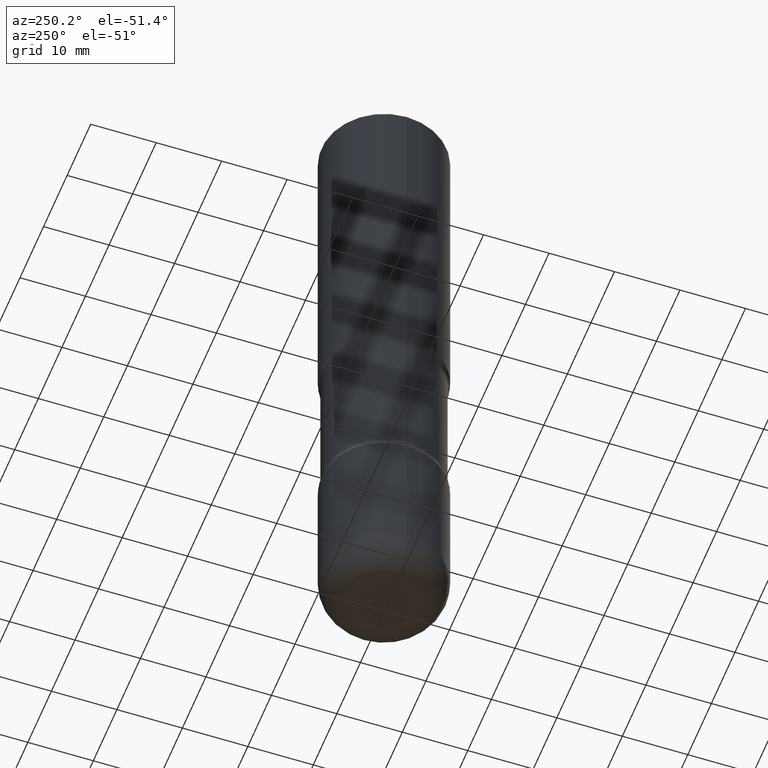
[diagram: clean part render]
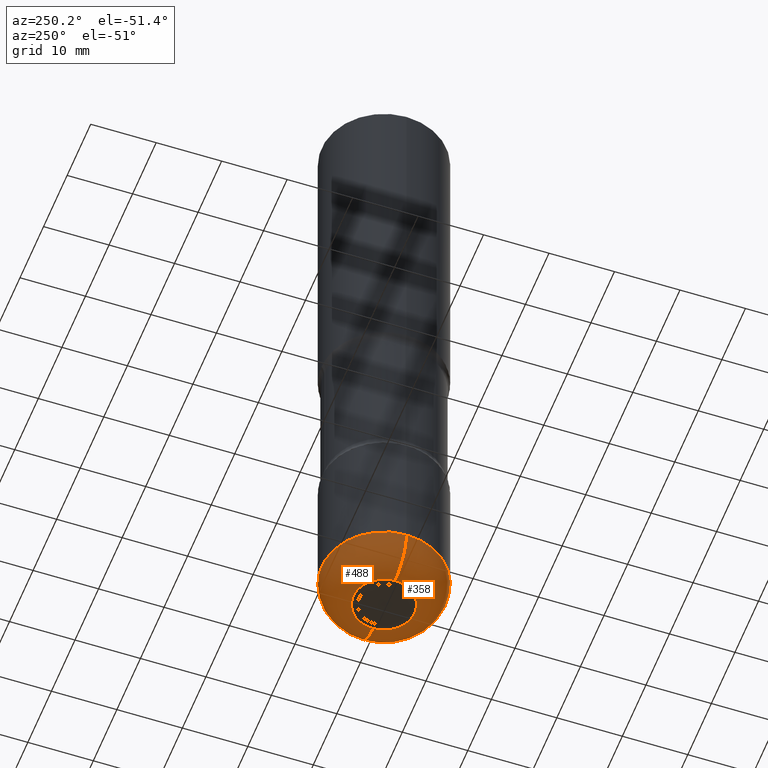
[diagram: same view with one multi-face feature highlighted, each face labeled with its STEP entity id]
A machine part, auxiliary view. The highlighted faces form ONE feature: a constant-radius fillet chain: 2 tangent blend faces with common blend radius 4.826 mm. The faces share edges in the B-rep.
Their STEP definitions:
[1] entity #488 (Torus):
#10 = CARTESIAN_POINT ( 'NONE',  ( -0.1850000000000001088, -1.198803983983620001E-14, -3.810000000000000053 ) ) ;
#19 = CARTESIAN_POINT ( 'NONE',  ( 0.1850000000000001088, -1.459439199636434728E-14, -3.810000000000000053 ) ) ;
#29 = DIRECTION ( 'NONE',  ( -1.000000000000000000, 7.105427357601003436E-15, 0.000000000000000000 ) ) ;
#32 = DIRECTION ( 'NONE',  ( -2.445468806185136597E-29, 3.491481338843145583E-15, 1.000000000000000000 ) ) ;
#59 = ORIENTED_EDGE ( 'NONE', *, *, #162, .T. ) ;
#74 = CARTESIAN_POINT ( 'NONE',  ( -0.1850000000000001366, -1.164471496805420332E-14, -4.000000000000000888 ) ) ;
#92 = DIRECTION ( 'NONE',  ( 1.000000000000000000, -6.982962677686270655E-15, 0.000000000000000000 ) ) ;
#96 = CIRCLE ( 'NONE', #199, 0.1900000000000001132 ) ;
#149 = AXIS2_PLACEMENT_3D ( 'NONE', #211, #470, #714 ) ;
#155 = VERTEX_POINT ( 'NONE', #74 ) ;
#162 = EDGE_CURVE ( 'NONE', #794, #155, #319, .T. ) ;
#194 = DIRECTION ( 'NONE',  ( 7.105427357601001859E-15, 1.000000000000000000, -3.491481338843145583E-15 ) ) ;
#199 = AXIS2_PLACEMENT_3D ( 'NONE', #10, #194, #29 ) ;
#206 = FACE_OUTER_BOUND ( 'NONE', #209, .T. ) ;
#209 = EDGE_LOOP ( 'NONE', ( #59, #276, #213, #767 ) ) ;
#211 = CARTESIAN_POINT ( 'NONE',  ( 9.317236151565370389E-29, -1.330254390099238573E-14, -3.810000000000000053 ) ) ;
#213 = ORIENTED_EDGE ( 'NONE', *, *, #658, .F. ) ;
#217 = AXIS2_PLACEMENT_3D ( 'NONE', #508, #32, #273 ) ;
#223 = DIRECTION ( 'NONE',  ( -2.445468806185136597E-29, 3.491481338843145583E-15, 1.000000000000000000 ) ) ;
#273 = DIRECTION ( 'NONE',  ( 1.000000000000000000, -6.982962677686266711E-15, 0.000000000000000000 ) ) ;
#276 = ORIENTED_EDGE ( 'NONE', *, *, #531, .T. ) ;
#319 = CIRCLE ( 'NONE', #478, 0.1850000000000001366 ) ;
#326 = VERTEX_POINT ( 'NONE', #708 ) ;
#333 = CARTESIAN_POINT ( 'NONE',  ( 9.781875224740547508E-29, -1.396592535537258391E-14, -4.000000000000000888 ) ) ;
#342 = TOROIDAL_SURFACE ( 'NONE', #149, 0.1850000000000001088, 0.1900000000000001688 ) ;
#350 = CIRCLE ( 'NONE', #796, 0.1900000000000001132 ) ;
#366 = VERTEX_POINT ( 'NONE', #549 ) ;
#470 = DIRECTION ( 'NONE',  ( -2.445468806185136597E-29, 3.491481338843145583E-15, 1.000000000000000000 ) ) ;
#478 = AXIS2_PLACEMENT_3D ( 'NONE', #333, #223, #92 ) ;
#488 = ADVANCED_FACE ( 'NONE', ( #206 ), #342, .T. ) ;
#508 = CARTESIAN_POINT ( 'NONE',  ( 9.317236151565370389E-29, -1.330254390099238573E-14, -3.810000000000000053 ) ) ;
#520 = EDGE_CURVE ( 'NONE', #794, #326, #350, .T. ) ;
#531 = EDGE_CURVE ( 'NONE', #155, #366, #96, .T. ) ;
#549 = CARTESIAN_POINT ( 'NONE',  ( -0.3750000000000001110, -1.063800864189200846E-14, -3.810000000000000053 ) ) ;
#647 = DIRECTION ( 'NONE',  ( 1.000000000000000000, -6.982962677686267499E-15, 0.000000000000000000 ) ) ;
#655 = CIRCLE ( 'NONE', #217, 0.3750000000000000555 ) ;
#656 = DIRECTION ( 'NONE',  ( -6.982962677686266711E-15, -1.000000000000000000, 3.491481338843145583E-15 ) ) ;
#658 = EDGE_CURVE ( 'NONE', #326, #366, #655, .T. ) ;
#708 = CARTESIAN_POINT ( 'NONE',  ( 0.3750000000000001110, -1.592115490512473732E-14, -3.810000000000000053 ) ) ;
#714 = DIRECTION ( 'NONE',  ( 1.000000000000000000, -6.982962677686269077E-15, 4.883557194083113462E-29 ) ) ;
#767 = ORIENTED_EDGE ( 'NONE', *, *, #520, .F. ) ;
#790 = CARTESIAN_POINT ( 'NONE',  ( 0.1850000000000001366, -1.525777345074454388E-14, -4.000000000000000888 ) ) ;
#794 = VERTEX_POINT ( 'NONE', #790 ) ;
#796 = AXIS2_PLACEMENT_3D ( 'NONE', #19, #656, #647 ) ;
[2] entity #358 (Torus):
#10 = CARTESIAN_POINT ( 'NONE',  ( -0.1850000000000001088, -1.198803983983620001E-14, -3.810000000000000053 ) ) ;
#19 = CARTESIAN_POINT ( 'NONE',  ( 0.1850000000000001088, -1.459439199636434728E-14, -3.810000000000000053 ) ) ;
#24 = EDGE_LOOP ( 'NONE', ( #193, #304, #164, #190 ) ) ;
#29 = DIRECTION ( 'NONE',  ( -1.000000000000000000, 7.105427357601003436E-15, 0.000000000000000000 ) ) ;
#74 = CARTESIAN_POINT ( 'NONE',  ( -0.1850000000000001366, -1.164471496805420332E-14, -4.000000000000000888 ) ) ;
#96 = CIRCLE ( 'NONE', #199, 0.1900000000000001132 ) ;
#97 = CIRCLE ( 'NONE', #501, 0.3750000000000000555 ) ;
#155 = VERTEX_POINT ( 'NONE', #74 ) ;
#164 = ORIENTED_EDGE ( 'NONE', *, *, #520, .T. ) ;
#190 = ORIENTED_EDGE ( 'NONE', *, *, #667, .F. ) ;
#193 = ORIENTED_EDGE ( 'NONE', *, *, #531, .F. ) ;
#194 = DIRECTION ( 'NONE',  ( 7.105427357601001859E-15, 1.000000000000000000, -3.491481338843145583E-15 ) ) ;
#199 = AXIS2_PLACEMENT_3D ( 'NONE', #10, #194, #29 ) ;
#210 = DIRECTION ( 'NONE',  ( 1.000000000000000000, -6.982962677686266711E-15, 0.000000000000000000 ) ) ;
#230 = CIRCLE ( 'NONE', #343, 0.1850000000000001366 ) ;
#233 = CARTESIAN_POINT ( 'NONE',  ( 9.317236151565370389E-29, -1.330254390099238573E-14, -3.810000000000000053 ) ) ;
#246 = DIRECTION ( 'NONE',  ( 1.000000000000000000, -6.982962677686270655E-15, 0.000000000000000000 ) ) ;
#286 = DIRECTION ( 'NONE',  ( -2.445468806185136597E-29, 3.491481338843145583E-15, 1.000000000000000000 ) ) ;
#304 = ORIENTED_EDGE ( 'NONE', *, *, #770, .T. ) ;
#326 = VERTEX_POINT ( 'NONE', #708 ) ;
#335 = CARTESIAN_POINT ( 'NONE',  ( 9.317236151565370389E-29, -1.330254390099238573E-14, -3.810000000000000053 ) ) ;
#343 = AXIS2_PLACEMENT_3D ( 'NONE', #573, #806, #246 ) ;
#350 = CIRCLE ( 'NONE', #796, 0.1900000000000001132 ) ;
#358 = ADVANCED_FACE ( 'NONE', ( #609 ), #402, .T. ) ;
#366 = VERTEX_POINT ( 'NONE', #549 ) ;
#402 = TOROIDAL_SURFACE ( 'NONE', #663, 0.1850000000000001088, 0.1900000000000001688 ) ;
#501 = AXIS2_PLACEMENT_3D ( 'NONE', #335, #286, #210 ) ;
#520 = EDGE_CURVE ( 'NONE', #794, #326, #350, .T. ) ;
#531 = EDGE_CURVE ( 'NONE', #155, #366, #96, .T. ) ;
#549 = CARTESIAN_POINT ( 'NONE',  ( -0.3750000000000001110, -1.063800864189200846E-14, -3.810000000000000053 ) ) ;
#573 = CARTESIAN_POINT ( 'NONE',  ( 9.781875224740547508E-29, -1.396592535537258391E-14, -4.000000000000000888 ) ) ;
#609 = FACE_OUTER_BOUND ( 'NONE', #24, .T. ) ;
#618 = DIRECTION ( 'NONE',  ( 1.000000000000000000, -6.982962677686269077E-15, 4.883557194083113462E-29 ) ) ;
#647 = DIRECTION ( 'NONE',  ( 1.000000000000000000, -6.982962677686267499E-15, 0.000000000000000000 ) ) ;
#656 = DIRECTION ( 'NONE',  ( -6.982962677686266711E-15, -1.000000000000000000, 3.491481338843145583E-15 ) ) ;
#663 = AXIS2_PLACEMENT_3D ( 'NONE', #233, #731, #618 ) ;
#667 = EDGE_CURVE ( 'NONE', #366, #326, #97, .T. ) ;
#708 = CARTESIAN_POINT ( 'NONE',  ( 0.3750000000000001110, -1.592115490512473732E-14, -3.810000000000000053 ) ) ;
#731 = DIRECTION ( 'NONE',  ( -2.445468806185136597E-29, 3.491481338843145583E-15, 1.000000000000000000 ) ) ;
#770 = EDGE_CURVE ( 'NONE', #155, #794, #230, .T. ) ;
#790 = CARTESIAN_POINT ( 'NONE',  ( 0.1850000000000001366, -1.525777345074454388E-14, -4.000000000000000888 ) ) ;
#794 = VERTEX_POINT ( 'NONE', #790 ) ;
#796 = AXIS2_PLACEMENT_3D ( 'NONE', #19, #656, #647 ) ;
#806 = DIRECTION ( 'NONE',  ( -2.445468806185136597E-29, 3.491481338843145583E-15, 1.000000000000000000 ) ) ;